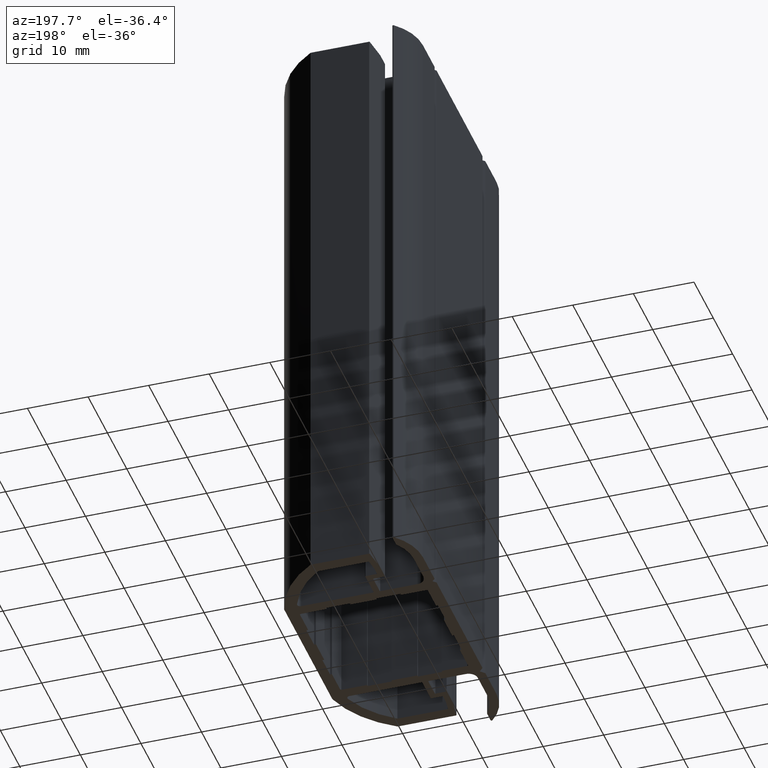
[diagram: clean part render]
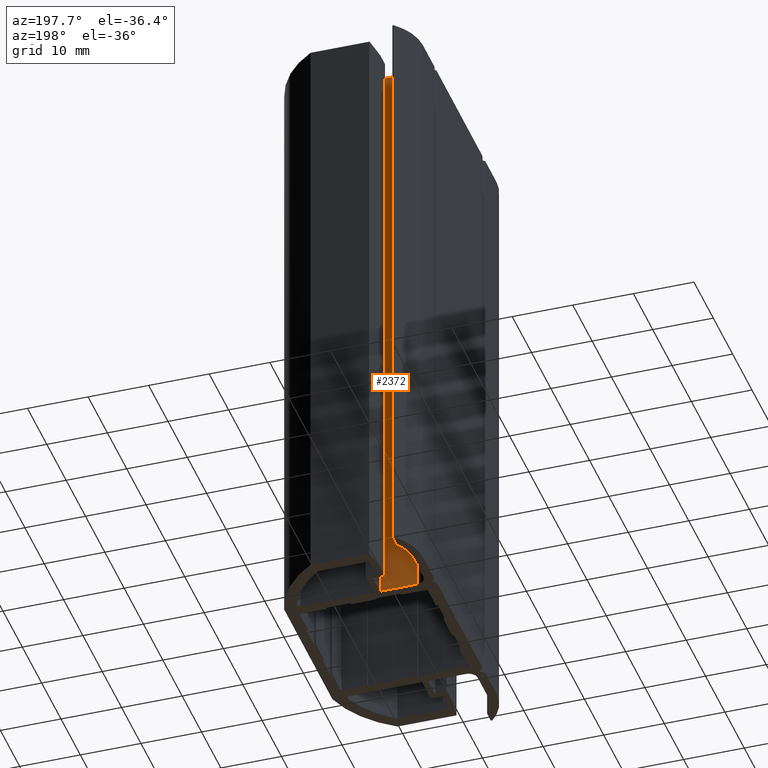
[diagram: same view with one face highlighted and labeled with its STEP entity id]
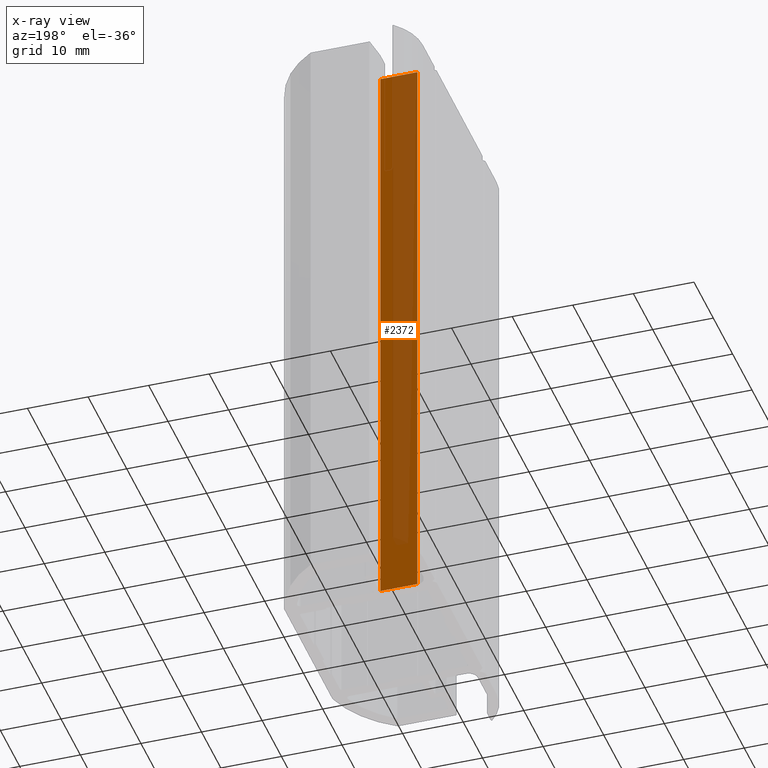
[diagram: x-ray of the same camera — body ghosted, the highlighted face saturated]
A machine part, auxiliary view. The second image highlights one B-rep face of the part: STEP entity #2372.
The next image is the same camera in x-ray: the body ghosted, the highlighted face saturated — about 49% of this face is hidden behind the body in this view.
In plain terms, the highlighted planar face has unit normal (0, 1, 0).
Its self-contained STEP definition (entity closure, byte-faithful):
#250=FACE_OUTER_BOUND('',#368,.T.);
#368=EDGE_LOOP('',(#1897,#1898,#1899,#1900));
#618=LINE('',#3907,#882);
#619=LINE('',#3911,#883);
#620=LINE('',#3913,#884);
#621=LINE('',#3914,#885);
#882=VECTOR('',#3203,10.);
#883=VECTOR('',#3208,10.);
#884=VECTOR('',#3209,10.);
#885=VECTOR('',#3210,10.);
#1123=VERTEX_POINT('',#3904);
#1124=VERTEX_POINT('',#3906);
#1125=VERTEX_POINT('',#3910);
#1126=VERTEX_POINT('',#3912);
#1451=EDGE_CURVE('',#1124,#1123,#618,.T.);
#1453=EDGE_CURVE('',#1125,#1123,#619,.T.);
#1454=EDGE_CURVE('',#1126,#1125,#620,.T.);
#1455=EDGE_CURVE('',#1124,#1126,#621,.T.);
#1897=ORIENTED_EDGE('',*,*,#1453,.F.);
#1898=ORIENTED_EDGE('',*,*,#1454,.F.);
#1899=ORIENTED_EDGE('',*,*,#1455,.F.);
#1900=ORIENTED_EDGE('',*,*,#1451,.T.);
#2259=PLANE('',#2600);
#2372=ADVANCED_FACE('',(#250),#2259,.T.);
#2600=AXIS2_PLACEMENT_3D('',#3909,#3206,#3207);
#3203=DIRECTION('',(0.,0.,1.));
#3206=DIRECTION('center_axis',(0.,1.,0.));
#3207=DIRECTION('ref_axis',(-1.,0.,0.));
#3208=DIRECTION('',(-1.,0.,0.));
#3209=DIRECTION('',(0.,0.,1.));
#3210=DIRECTION('',(1.,0.,0.));
#3904=CARTESIAN_POINT('',(-9.49999999999995,12.5,100.));
#3906=CARTESIAN_POINT('',(-9.49999999999995,12.5,0.));
#3907=CARTESIAN_POINT('',(-9.49999999999995,12.5,0.));
#3909=CARTESIAN_POINT('Origin',(-3.40000000000027,12.5,0.));
#3910=CARTESIAN_POINT('',(-3.40000000000027,12.5,100.));
#3911=CARTESIAN_POINT('',(-1.70000000000013,12.5,100.));
#3912=CARTESIAN_POINT('',(-3.40000000000027,12.5,0.));
#3913=CARTESIAN_POINT('',(-3.40000000000027,12.5,0.));
#3914=CARTESIAN_POINT('',(-1.70000000000013,12.5,0.));